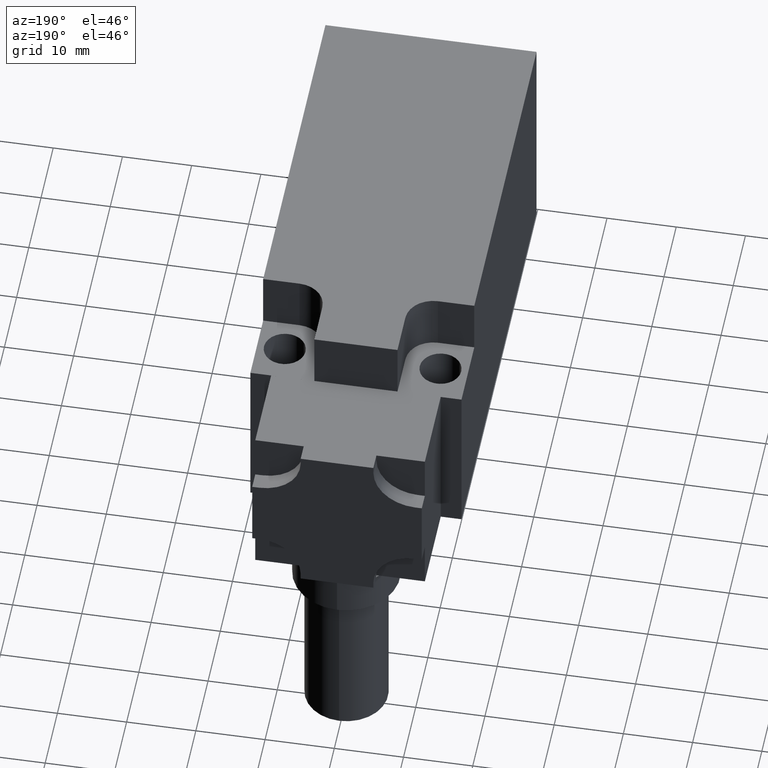
[diagram: clean part render]
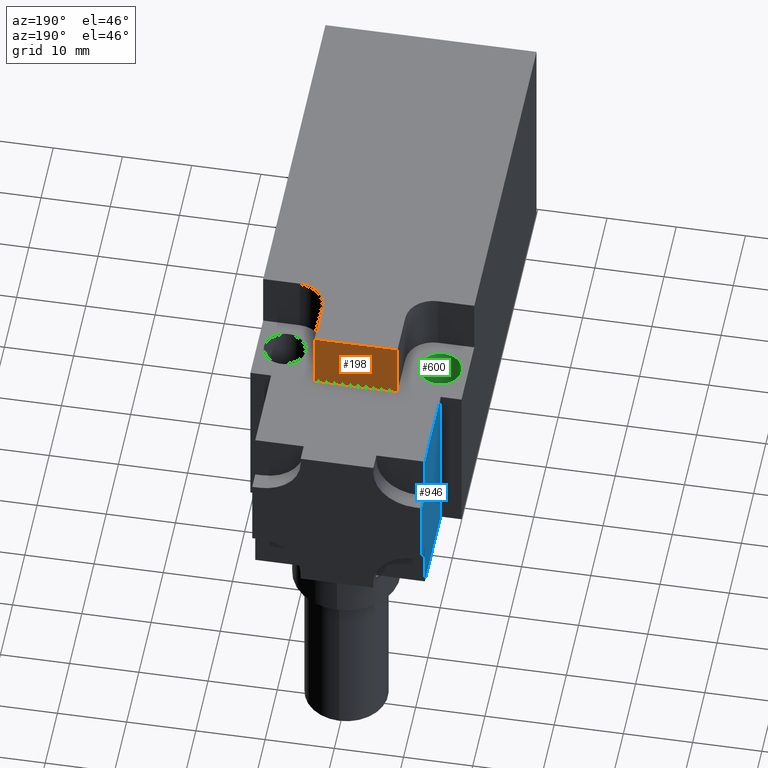
[diagram: same view with three faces highlighted in distinct colors, each labeled with its STEP entity id]
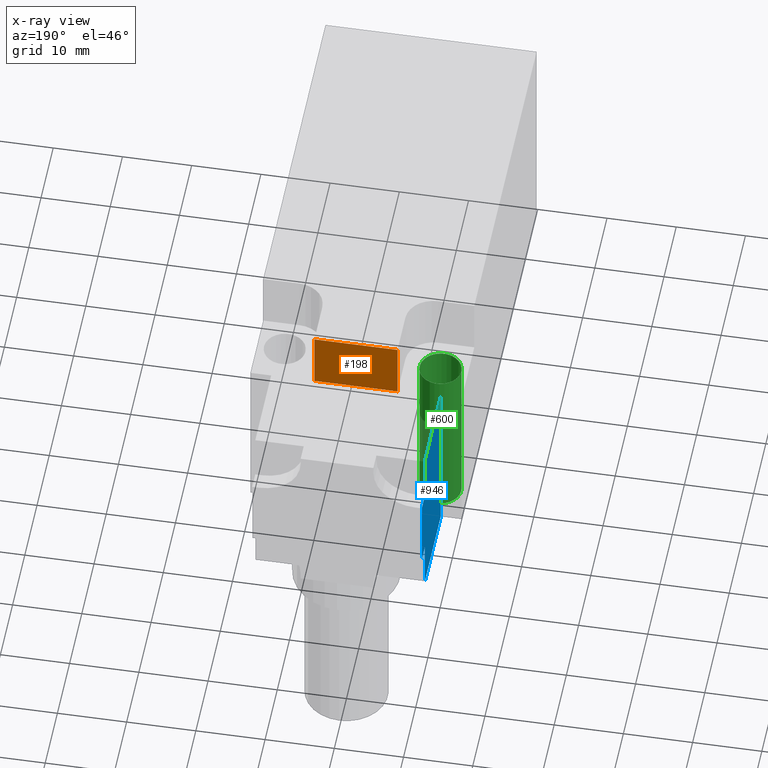
[diagram: x-ray of the same camera — body ghosted, the three highlighted faces saturated]
A machine part, auxiliary view with three faces highlighted in distinct colors.
The next image is the same camera in x-ray (body ghosted, the three faces saturated) — at least one of them is partly hidden behind the body in this view.
Their STEP definitions:

[orange] entity #198 — the highlighted planar face has unit normal (0, 1, 0).
#142=CARTESIAN_POINT('',(5.999999999975515,-7.749999999969077,24.499999999902048));
#143=VERTEX_POINT('',#142);
#150=CARTESIAN_POINT('',(5.999999999975515,-7.749999999969077,33.000000114096991));
#151=VERTEX_POINT('',#150);
#152=CARTESIAN_POINT('',(5.999999999975515,-7.749999999969077,24.499999999902048));
#153=DIRECTION('',(0.0,0.0,1.0));
#154=VECTOR('',#153,8.500000114194943);
#155=LINE('',#152,#154);
#156=EDGE_CURVE('',#143,#151,#155,.T.);
#168=CARTESIAN_POINT('',(5.999999999975515,-7.749999999969077,24.499999999902048));
#169=DIRECTION('',(0.0,1.0,0.0));
#170=DIRECTION('',(-1.0,0.0,0.0));
#171=AXIS2_PLACEMENT_3D('',#168,#169,#170);
#172=PLANE('',#171);
#173=CARTESIAN_POINT('',(-5.999999999976282,-7.749999999969077,24.499999999902048));
#174=VERTEX_POINT('',#173);
#175=CARTESIAN_POINT('',(5.999999999975515,-7.749999999969077,24.499999999902048));
#176=DIRECTION('',(-1.0,0.0,0.0));
#177=VECTOR('',#176,11.999999999951797);
#178=LINE('',#175,#177);
#179=EDGE_CURVE('',#143,#174,#178,.T.);
#180=ORIENTED_EDGE('',*,*,#179,.T.);
#181=CARTESIAN_POINT('',(-5.999999999976282,-7.749999999969077,33.000000114096991));
#182=VERTEX_POINT('',#181);
#183=CARTESIAN_POINT('',(-5.999999999976282,-7.749999999969077,24.499999999902048));
#184=DIRECTION('',(0.0,0.0,1.0));
#185=VECTOR('',#184,8.500000114194943);
#186=LINE('',#183,#185);
#187=EDGE_CURVE('',#174,#182,#186,.T.);
#188=ORIENTED_EDGE('',*,*,#187,.T.);
#189=CARTESIAN_POINT('',(5.999999999975515,-7.749999999969077,33.000000114096991));
#190=DIRECTION('',(-1.0,0.0,0.0));
#191=VECTOR('',#190,11.999999999951797);
#192=LINE('',#189,#191);
#193=EDGE_CURVE('',#151,#182,#192,.T.);
#194=ORIENTED_EDGE('',*,*,#193,.F.);
#195=ORIENTED_EDGE('',*,*,#156,.F.);
#196=EDGE_LOOP('',(#180,#188,#194,#195));
#197=FACE_OUTER_BOUND('',#196,.T.);
#198=ADVANCED_FACE('',(#197),#172,.T.);

[blue] entity #946 — the highlighted planar face has unit normal (-1, 0, 0).
#875=CARTESIAN_POINT('',(-12.249999999950816,7.749999999969077,0.0));
#876=DIRECTION('',(-1.0,0.0,0.0));
#877=DIRECTION('',(0.0,-1.0,0.0));
#878=AXIS2_PLACEMENT_3D('',#875,#876,#877);
#879=PLANE('',#878);
#880=CARTESIAN_POINT('',(-12.249999999950816,-7.749999999969077,0.0));
#881=VERTEX_POINT('',#880);
#882=CARTESIAN_POINT('',(-12.249999999950816,-7.749999999969077,24.500000114229227));
#883=VERTEX_POINT('',#882);
#884=CARTESIAN_POINT('',(-12.249999999950816,-7.749999999969077,0.0));
#885=DIRECTION('',(0.0,0.0,1.0));
#886=VECTOR('',#885,24.500000114229227);
#887=LINE('',#884,#886);
#888=EDGE_CURVE('',#881,#883,#887,.T.);
#889=ORIENTED_EDGE('',*,*,#888,.T.);
#890=CARTESIAN_POINT('',(-12.249999999950816,5.249999999979082,24.500000114229227));
#891=VERTEX_POINT('',#890);
#892=CARTESIAN_POINT('',(-12.249999999950816,5.249999999979082,24.500000114229227));
#893=DIRECTION('',(0.0,-1.0,0.0));
#894=VECTOR('',#893,12.999999999948159);
#895=LINE('',#892,#894);
#896=EDGE_CURVE('',#891,#883,#895,.T.);
#897=ORIENTED_EDGE('',*,*,#896,.F.);
#898=CARTESIAN_POINT('',(-12.249999999950816,5.249999999979082,17.499999751649217));
#899=VERTEX_POINT('',#898);
#900=CARTESIAN_POINT('',(-12.249999999950816,5.249999999979082,24.500000114229227));
#901=DIRECTION('',(0.0,0.0,-1.0));
#902=VECTOR('',#901,7.000000362580011);
#903=LINE('',#900,#902);
#904=EDGE_CURVE('',#891,#899,#903,.T.);
#905=ORIENTED_EDGE('',*,*,#904,.T.);
#906=CARTESIAN_POINT('',(-12.249999999950816,7.749999999969077,17.499999751649217));
#907=VERTEX_POINT('',#906);
#908=CARTESIAN_POINT('',(-12.249999999950816,7.749999999969077,17.499999751649217));
#909=DIRECTION('',(0.0,-1.0,0.0));
#910=VECTOR('',#909,2.499999999989996);
#911=LINE('',#908,#910);
#912=EDGE_CURVE('',#907,#899,#911,.T.);
#913=ORIENTED_EDGE('',*,*,#912,.F.);
#914=CARTESIAN_POINT('',(-12.249999999950816,7.749999999969077,7.000000114298985));
#915=VERTEX_POINT('',#914);
#916=CARTESIAN_POINT('',(-12.249999999950816,7.749999999969077,7.000000114298985));
#917=DIRECTION('',(0.0,0.0,1.0));
#918=VECTOR('',#917,10.499999637350232);
#919=LINE('',#916,#918);
#920=EDGE_CURVE('',#915,#907,#919,.T.);
#921=ORIENTED_EDGE('',*,*,#920,.F.);
#922=CARTESIAN_POINT('',(-12.249999999950816,5.249999999979082,7.000000114298985));
#923=VERTEX_POINT('',#922);
#924=CARTESIAN_POINT('',(-12.249999999950816,7.749999999969077,7.000000114298985));
#925=DIRECTION('',(0.0,-1.0,0.0));
#926=VECTOR('',#925,2.499999999989996);
#927=LINE('',#924,#926);
#928=EDGE_CURVE('',#915,#923,#927,.T.);
#929=ORIENTED_EDGE('',*,*,#928,.T.);
#930=CARTESIAN_POINT('',(-12.249999999950816,5.249999999979082,0.0));
#931=VERTEX_POINT('',#930);
#932=CARTESIAN_POINT('',(-12.249999999950816,5.249999999979082,0.0));
#933=DIRECTION('',(0.0,0.0,1.0));
#934=VECTOR('',#933,7.000000114298985);
#935=LINE('',#932,#934);
#936=EDGE_CURVE('',#931,#923,#935,.T.);
#937=ORIENTED_EDGE('',*,*,#936,.F.);
#938=CARTESIAN_POINT('',(-12.249999999950816,5.249999999979082,0.0));
#939=DIRECTION('',(0.0,-1.0,0.0));
#940=VECTOR('',#939,12.999999999948159);
#941=LINE('',#938,#940);
#942=EDGE_CURVE('',#931,#881,#941,.T.);
#943=ORIENTED_EDGE('',*,*,#942,.T.);
#944=EDGE_LOOP('',(#889,#897,#905,#913,#921,#929,#937,#943));
#945=FACE_OUTER_BOUND('',#944,.T.);
#946=ADVANCED_FACE('',(#945),#879,.T.);

[green] entity #600 — the highlighted cylindrical surface (bore or boss wall) has radius 3 mm, axis along (0, 0, 1).
#489=CARTESIAN_POINT('',(-14.249999999943370,-13.249999999946795,0.0));
#490=VERTEX_POINT('',#489);
#491=CARTESIAN_POINT('',(-8.249999999967358,-13.249999999946795,0.0));
#492=VERTEX_POINT('',#491);
#493=CARTESIAN_POINT('',(-11.249999999955364,-13.249999999946795,0.0));
#494=DIRECTION('',(0.0,0.0,-1.0));
#495=DIRECTION('',(1.0,0.0,0.0));
#496=AXIS2_PLACEMENT_3D('',#493,#494,#495);
#497=CIRCLE('',#496,2.999999999988006);
#498=EDGE_CURVE('',#490,#492,#497,.T.);
#500=CARTESIAN_POINT('',(-11.249999999955364,-13.249999999946795,0.0));
#501=DIRECTION('',(0.0,0.0,-1.0));
#502=DIRECTION('',(1.0,0.0,0.0));
#503=AXIS2_PLACEMENT_3D('',#500,#501,#502);
#504=CIRCLE('',#503,2.999999999988006);
#505=EDGE_CURVE('',#492,#490,#504,.T.);
#541=CARTESIAN_POINT('',(-14.249999999943370,-13.249999999946795,24.499999999902048));
#542=VERTEX_POINT('',#541);
#543=CARTESIAN_POINT('',(-8.249999999967358,-13.249999999946795,24.499999999902048));
#544=VERTEX_POINT('',#543);
#545=CARTESIAN_POINT('',(-11.249999999955364,-13.249999999946795,24.499999999902048));
#546=DIRECTION('',(0.0,0.0,1.0));
#547=DIRECTION('',(1.0,0.0,0.0));
#548=AXIS2_PLACEMENT_3D('',#545,#546,#547);
#549=CIRCLE('',#548,2.999999999988006);
#550=EDGE_CURVE('',#542,#544,#549,.T.);
#552=CARTESIAN_POINT('',(-11.249999999955364,-13.249999999946795,24.499999999902048));
#553=DIRECTION('',(0.0,0.0,1.0));
#554=DIRECTION('',(1.0,0.0,0.0));
#555=AXIS2_PLACEMENT_3D('',#552,#553,#554);
#556=CIRCLE('',#555,2.999999999988006);
#557=EDGE_CURVE('',#544,#542,#556,.T.);
#582=CARTESIAN_POINT('',(-11.249999999955364,-13.249999999946795,24.499999999902048));
#583=DIRECTION('',(0.0,0.0,1.0));
#584=DIRECTION('',(1.0,0.0,0.0));
#585=AXIS2_PLACEMENT_3D('',#582,#583,#584);
#586=CYLINDRICAL_SURFACE('',#585,2.999999999988006);
#587=CARTESIAN_POINT('',(-8.249999999967358,-13.249999999946795,24.499999999902048));
#588=DIRECTION('',(0.0,0.0,-1.0));
#589=VECTOR('',#588,24.499999999902048);
#590=LINE('',#587,#589);
#591=EDGE_CURVE('',#544,#492,#590,.T.);
#592=ORIENTED_EDGE('',*,*,#591,.T.);
#593=ORIENTED_EDGE('',*,*,#505,.T.);
#594=ORIENTED_EDGE('',*,*,#498,.T.);
#595=ORIENTED_EDGE('',*,*,#591,.F.);
#596=ORIENTED_EDGE('',*,*,#557,.T.);
#597=ORIENTED_EDGE('',*,*,#550,.T.);
#598=EDGE_LOOP('',(#592,#593,#594,#595,#596,#597));
#599=FACE_OUTER_BOUND('',#598,.T.);
#600=ADVANCED_FACE('',(#599),#586,.F.);